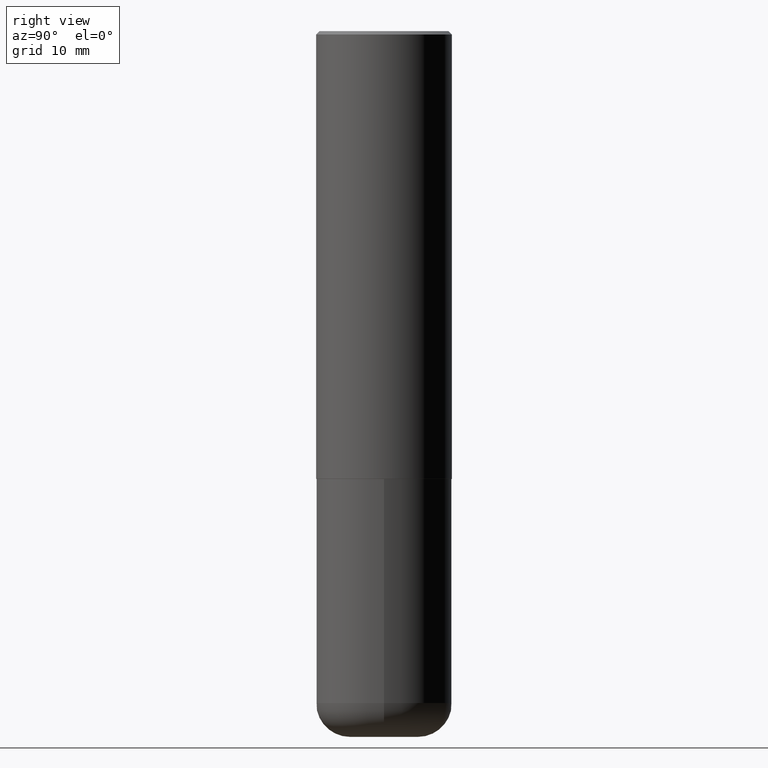
[diagram: clean part render]
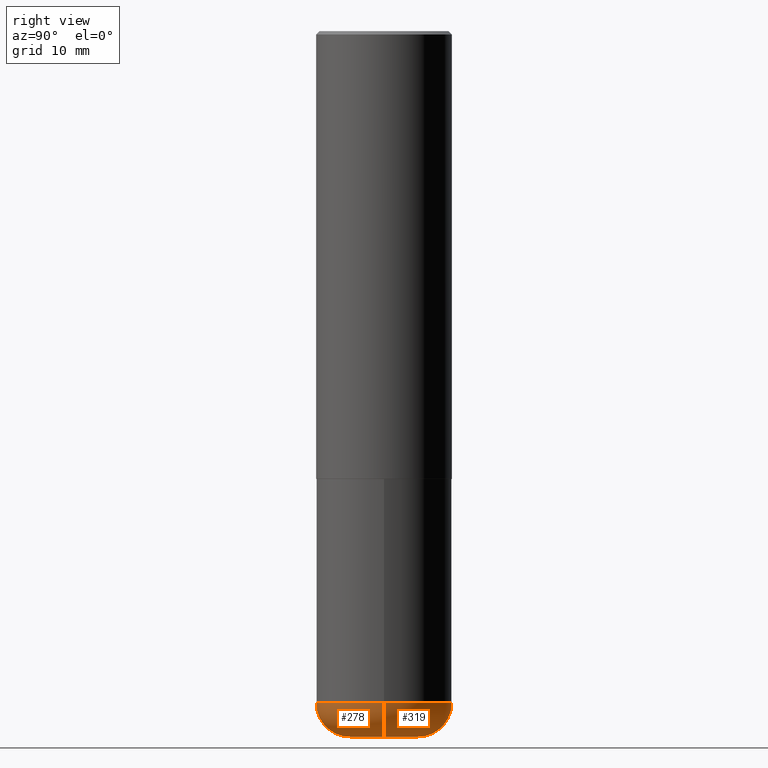
[diagram: same view with one multi-face feature highlighted, each face labeled with its STEP entity id]
A machine part, right view. The highlighted faces form ONE feature: a constant-radius fillet chain: 2 tangent blend faces with common blend radius 5.0013 mm. The faces share edges in the B-rep.
Their STEP definitions:
[1] entity #319 (Torus):
#1 = FACE_OUTER_BOUND ( 'NONE', #233, .T. ) ;
#22 = DIRECTION ( 'NONE',  ( 1.000000000000000000, -6.982962677686267499E-15, 0.000000000000000000 ) ) ;
#24 = EDGE_CURVE ( 'NONE', #324, #380, #330, .T. ) ;
#34 = CIRCLE ( 'NONE', #274, 0.1968000000000000582 ) ;
#36 = ORIENTED_EDGE ( 'NONE', *, *, #284, .F. ) ;
#37 = DIRECTION ( 'NONE',  ( 1.000000000000000000, -6.982962677686269077E-15, 4.883557194083114022E-29 ) ) ;
#45 = CARTESIAN_POINT ( 'NONE',  ( -0.1968000000000000582, -1.185425657675245696E-14, -4.094500000000000028 ) ) ;
#54 = DIRECTION ( 'NONE',  ( -2.445468806185136597E-29, 3.491481338843145583E-15, 1.000000000000000000 ) ) ;
#62 = EDGE_CURVE ( 'NONE', #64, #350, #177, .T. ) ;
#64 = VERTEX_POINT ( 'NONE', #45 ) ;
#72 = DIRECTION ( 'NONE',  ( -2.445468806185136597E-29, 3.491481338843145583E-15, 1.000000000000000000 ) ) ;
#93 = DIRECTION ( 'NONE',  ( -6.982962677686266711E-15, -1.000000000000000000, 3.491481338843145583E-15 ) ) ;
#108 = EDGE_CURVE ( 'NONE', #324, #64, #34, .T. ) ;
#114 = AXIS2_PLACEMENT_3D ( 'NONE', #342, #54, #22 ) ;
#137 = DIRECTION ( 'NONE',  ( -2.445468806185136597E-29, 3.491481338843145583E-15, 1.000000000000000000 ) ) ;
#149 = CIRCLE ( 'NONE', #114, 0.3937000000000000499 ) ;
#151 = CARTESIAN_POINT ( 'NONE',  ( 0.1968000000000000582, -1.567011739686191959E-14, -4.094500000000000028 ) ) ;
#158 = CARTESIAN_POINT ( 'NONE',  ( -0.3936999999999999389, -1.081099091558753178E-14, -3.897600000000000620 ) ) ;
#168 = CARTESIAN_POINT ( 'NONE',  ( 1.001297202692504215E-28, -1.429587034189326149E-14, -4.094500000000000028 ) ) ;
#177 = CIRCLE ( 'NONE', #259, 0.1968999999999999084 ) ;
#185 = TOROIDAL_SURFACE ( 'NONE', #320, 0.1968000000000000305, 0.1968999999999998807 ) ;
#226 = ORIENTED_EDGE ( 'NONE', *, *, #62, .T. ) ;
#227 = ORIENTED_EDGE ( 'NONE', *, *, #108, .T. ) ;
#233 = EDGE_LOOP ( 'NONE', ( #227, #226, #36, #264 ) ) ;
#245 = DIRECTION ( 'NONE',  ( 1.000000000000000000, -6.982962677686269866E-15, 0.000000000000000000 ) ) ;
#247 = DIRECTION ( 'NONE',  ( 1.000000000000000000, -6.982962677686269077E-15, 0.000000000000000000 ) ) ;
#259 = AXIS2_PLACEMENT_3D ( 'NONE', #398, #280, #311 ) ;
#264 = ORIENTED_EDGE ( 'NONE', *, *, #24, .F. ) ;
#270 = CARTESIAN_POINT ( 'NONE',  ( 9.531459218987190195E-29, -1.360839766627504578E-14, -3.897600000000000620 ) ) ;
#274 = AXIS2_PLACEMENT_3D ( 'NONE', #168, #137, #245 ) ;
#280 = DIRECTION ( 'NONE',  ( 7.105427357601001859E-15, 1.000000000000000000, -3.491481338843145583E-15 ) ) ;
#282 = AXIS2_PLACEMENT_3D ( 'NONE', #384, #93, #247 ) ;
#284 = EDGE_CURVE ( 'NONE', #380, #350, #149, .T. ) ;
#311 = DIRECTION ( 'NONE',  ( -1.000000000000000000, 7.105427357600995548E-15, 0.000000000000000000 ) ) ;
#319 = ADVANCED_FACE ( 'NONE', ( #1 ), #185, .T. ) ;
#320 = AXIS2_PLACEMENT_3D ( 'NONE', #270, #72, #37 ) ;
#324 = VERTEX_POINT ( 'NONE', #151 ) ;
#330 = CIRCLE ( 'NONE', #282, 0.1968999999999999084 ) ;
#342 = CARTESIAN_POINT ( 'NONE',  ( 9.531459218987190195E-29, -1.360839766627504578E-14, -3.897600000000000620 ) ) ;
#350 = VERTEX_POINT ( 'NONE', #158 ) ;
#380 = VERTEX_POINT ( 'NONE', #387 ) ;
#384 = CARTESIAN_POINT ( 'NONE',  ( 0.1968000000000000305, -1.498264472124370230E-14, -3.897600000000000620 ) ) ;
#387 = CARTESIAN_POINT ( 'NONE',  ( 0.3936999999999999389, -1.635759007248013057E-14, -3.897600000000000620 ) ) ;
#398 = CARTESIAN_POINT ( 'NONE',  ( -0.1968000000000000305, -1.221004956229916800E-14, -3.897600000000000620 ) ) ;
[2] entity #278 (Torus):
#24 = EDGE_CURVE ( 'NONE', #324, #380, #330, .T. ) ;
#35 = ORIENTED_EDGE ( 'NONE', *, *, #24, .T. ) ;
#45 = CARTESIAN_POINT ( 'NONE',  ( -0.1968000000000000582, -1.185425657675245696E-14, -4.094500000000000028 ) ) ;
#47 = AXIS2_PLACEMENT_3D ( 'NONE', #377, #221, #86 ) ;
#62 = EDGE_CURVE ( 'NONE', #64, #350, #177, .T. ) ;
#64 = VERTEX_POINT ( 'NONE', #45 ) ;
#85 = ORIENTED_EDGE ( 'NONE', *, *, #196, .F. ) ;
#86 = DIRECTION ( 'NONE',  ( 1.000000000000000000, -6.982962677686269077E-15, 4.883557194083114022E-29 ) ) ;
#93 = DIRECTION ( 'NONE',  ( -6.982962677686266711E-15, -1.000000000000000000, 3.491481338843145583E-15 ) ) ;
#151 = CARTESIAN_POINT ( 'NONE',  ( 0.1968000000000000582, -1.567011739686191959E-14, -4.094500000000000028 ) ) ;
#155 = EDGE_LOOP ( 'NONE', ( #417, #262, #35, #85 ) ) ;
#158 = CARTESIAN_POINT ( 'NONE',  ( -0.3936999999999999389, -1.081099091558753178E-14, -3.897600000000000620 ) ) ;
#169 = AXIS2_PLACEMENT_3D ( 'NONE', #251, #318, #317 ) ;
#177 = CIRCLE ( 'NONE', #259, 0.1968999999999999084 ) ;
#191 = CIRCLE ( 'NONE', #347, 0.1968000000000000582 ) ;
#196 = EDGE_CURVE ( 'NONE', #350, #380, #242, .T. ) ;
#201 = DIRECTION ( 'NONE',  ( -2.445468806185136597E-29, 3.491481338843145583E-15, 1.000000000000000000 ) ) ;
#221 = DIRECTION ( 'NONE',  ( -2.445468806185136597E-29, 3.491481338843145583E-15, 1.000000000000000000 ) ) ;
#242 = CIRCLE ( 'NONE', #169, 0.3937000000000000499 ) ;
#247 = DIRECTION ( 'NONE',  ( 1.000000000000000000, -6.982962677686269077E-15, 0.000000000000000000 ) ) ;
#251 = CARTESIAN_POINT ( 'NONE',  ( 9.531459218987190195E-29, -1.360839766627504578E-14, -3.897600000000000620 ) ) ;
#259 = AXIS2_PLACEMENT_3D ( 'NONE', #398, #280, #311 ) ;
#262 = ORIENTED_EDGE ( 'NONE', *, *, #376, .T. ) ;
#278 = ADVANCED_FACE ( 'NONE', ( #315 ), #411, .T. ) ;
#280 = DIRECTION ( 'NONE',  ( 7.105427357601001859E-15, 1.000000000000000000, -3.491481338843145583E-15 ) ) ;
#282 = AXIS2_PLACEMENT_3D ( 'NONE', #384, #93, #247 ) ;
#311 = DIRECTION ( 'NONE',  ( -1.000000000000000000, 7.105427357600995548E-15, 0.000000000000000000 ) ) ;
#315 = FACE_OUTER_BOUND ( 'NONE', #155, .T. ) ;
#317 = DIRECTION ( 'NONE',  ( 1.000000000000000000, -6.982962677686267499E-15, 0.000000000000000000 ) ) ;
#318 = DIRECTION ( 'NONE',  ( -2.445468806185136597E-29, 3.491481338843145583E-15, 1.000000000000000000 ) ) ;
#324 = VERTEX_POINT ( 'NONE', #151 ) ;
#328 = CARTESIAN_POINT ( 'NONE',  ( 1.001297202692504215E-28, -1.429587034189326149E-14, -4.094500000000000028 ) ) ;
#330 = CIRCLE ( 'NONE', #282, 0.1968999999999999084 ) ;
#347 = AXIS2_PLACEMENT_3D ( 'NONE', #328, #201, #362 ) ;
#350 = VERTEX_POINT ( 'NONE', #158 ) ;
#362 = DIRECTION ( 'NONE',  ( 1.000000000000000000, -6.982962677686269866E-15, 0.000000000000000000 ) ) ;
#376 = EDGE_CURVE ( 'NONE', #64, #324, #191, .T. ) ;
#377 = CARTESIAN_POINT ( 'NONE',  ( 9.531459218987190195E-29, -1.360839766627504578E-14, -3.897600000000000620 ) ) ;
#380 = VERTEX_POINT ( 'NONE', #387 ) ;
#384 = CARTESIAN_POINT ( 'NONE',  ( 0.1968000000000000305, -1.498264472124370230E-14, -3.897600000000000620 ) ) ;
#387 = CARTESIAN_POINT ( 'NONE',  ( 0.3936999999999999389, -1.635759007248013057E-14, -3.897600000000000620 ) ) ;
#398 = CARTESIAN_POINT ( 'NONE',  ( -0.1968000000000000305, -1.221004956229916800E-14, -3.897600000000000620 ) ) ;
#411 = TOROIDAL_SURFACE ( 'NONE', #47, 0.1968000000000000305, 0.1968999999999998807 ) ;
#417 = ORIENTED_EDGE ( 'NONE', *, *, #62, .F. ) ;